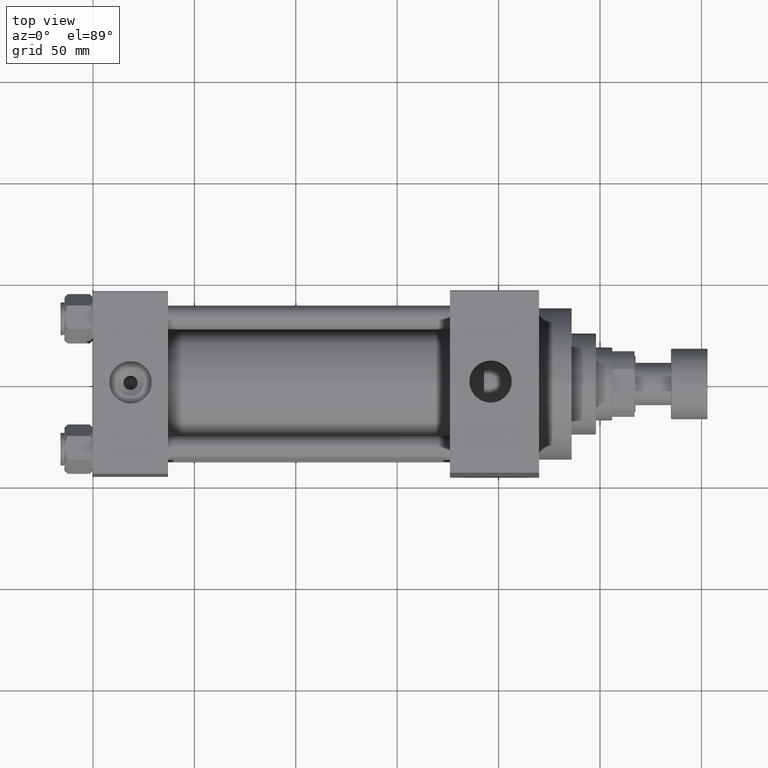
[diagram: clean part render]
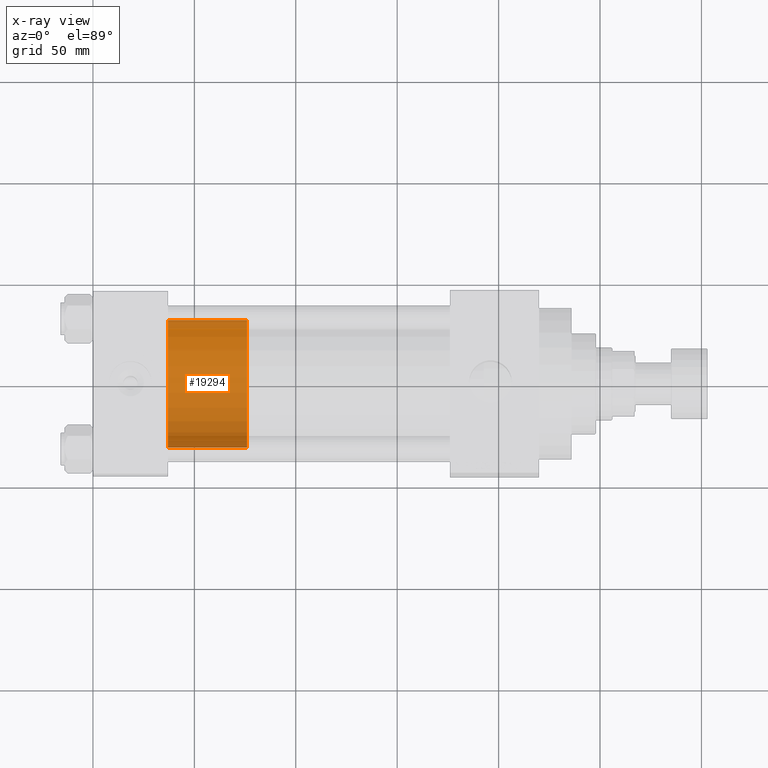
[diagram: x-ray — body ghosted, one internal face saturated and labeled with its STEP entity id]
A machine part, top view, then the same camera in x-ray: the body is ghosted and one INTERNAL B-rep face — a face not visible from any outside direction — is saturated and labeled: STEP entity #19294.
In plain terms, the highlighted cylindrical surface (partial cylindrical patch) has radius 31.5 mm, axis along (-1, 0, 0).
Its self-contained STEP definition (entity closure, byte-faithful):
#5964 = LINE ( 'NONE', #20497, #32354 ) ;
#7456 = CIRCLE ( 'NONE', #31464, 31.50000000000000000 ) ;
#8679 = EDGE_CURVE ( 'NONE', #38526, #28227, #35346, .T. ) ;
#8850 = AXIS2_PLACEMENT_3D ( 'NONE', #36774, #32196, #46978 ) ;
#10507 = VERTEX_POINT ( 'NONE', #42223 ) ;
#11520 = CIRCLE ( 'NONE', #38586, 31.50000000000000000 ) ;
#13238 = DIRECTION ( 'NONE',  ( -0.000000000000000000, -0.000000000000000000, -1.000000000000000000 ) ) ;
#13569 = ORIENTED_EDGE ( 'NONE', *, *, #23997, .F. ) ;
#16372 = CARTESIAN_POINT ( 'NONE',  ( 31.50000000000000000, 3.857637417314162689E-15, 39.00000000000000000 ) ) ;
#16408 = CARTESIAN_POINT ( 'NONE',  ( 0.000000000000000000, 0.000000000000000000, 39.00000000000000000 ) ) ;
#17911 = FACE_OUTER_BOUND ( 'NONE', #35190, .T. ) ;
#18545 = CARTESIAN_POINT ( 'NONE',  ( -31.50000000000000000, 0.000000000000000000, 0.000000000000000000 ) ) ;
#19294 = ADVANCED_FACE ( 'NONE', ( #17911 ), #47682, .T. ) ;
#19521 = ORIENTED_EDGE ( 'NONE', *, *, #8679, .T. ) ;
#20497 = CARTESIAN_POINT ( 'NONE',  ( -31.50000000000000000, 0.000000000000000000, 39.00000000000000000 ) ) ;
#23982 = DIRECTION ( 'NONE',  ( -0.000000000000000000, -0.000000000000000000, -1.000000000000000000 ) ) ;
#23997 = EDGE_CURVE ( 'NONE', #38526, #10507, #7456, .T. ) ;
#27364 = CARTESIAN_POINT ( 'NONE',  ( 31.50000000000000000, 3.857637417314162689E-15, 39.00000000000000000 ) ) ;
#27481 = CARTESIAN_POINT ( 'NONE',  ( 0.000000000000000000, 0.000000000000000000, 0.000000000000000000 ) ) ;
#28227 = VERTEX_POINT ( 'NONE', #44806 ) ;
#28653 = EDGE_CURVE ( 'NONE', #10507, #29741, #5964, .T. ) ;
#29090 = EDGE_CURVE ( 'NONE', #28227, #29741, #11520, .T. ) ;
#29741 = VERTEX_POINT ( 'NONE', #18545 ) ;
#31174 = DIRECTION ( 'NONE',  ( 1.000000000000000000, 0.000000000000000000, 0.000000000000000000 ) ) ;
#31248 = VECTOR ( 'NONE', #23982, 1000.000000000000000 ) ;
#31464 = AXIS2_PLACEMENT_3D ( 'NONE', #16408, #45714, #31174 ) ;
#31990 = DIRECTION ( 'NONE',  ( 0.000000000000000000, 0.000000000000000000, 1.000000000000000000 ) ) ;
#32196 = DIRECTION ( 'NONE',  ( -0.000000000000000000, -0.000000000000000000, -1.000000000000000000 ) ) ;
#32354 = VECTOR ( 'NONE', #13238, 1000.000000000000000 ) ;
#35190 = EDGE_LOOP ( 'NONE', ( #13569, #19521, #41309, #39234 ) ) ;
#35346 = LINE ( 'NONE', #27364, #31248 ) ;
#36774 = CARTESIAN_POINT ( 'NONE',  ( 0.000000000000000000, 0.000000000000000000, 39.00000000000000000 ) ) ;
#38526 = VERTEX_POINT ( 'NONE', #16372 ) ;
#38586 = AXIS2_PLACEMENT_3D ( 'NONE', #27481, #31990, #42258 ) ;
#39234 = ORIENTED_EDGE ( 'NONE', *, *, #28653, .F. ) ;
#41309 = ORIENTED_EDGE ( 'NONE', *, *, #29090, .T. ) ;
#42223 = CARTESIAN_POINT ( 'NONE',  ( -31.50000000000000000, 0.000000000000000000, 39.00000000000000000 ) ) ;
#42258 = DIRECTION ( 'NONE',  ( 1.000000000000000000, 0.000000000000000000, 0.000000000000000000 ) ) ;
#44806 = CARTESIAN_POINT ( 'NONE',  ( 31.50000000000000000, 3.857637417314162689E-15, 0.000000000000000000 ) ) ;
#45714 = DIRECTION ( 'NONE',  ( 0.000000000000000000, 0.000000000000000000, 1.000000000000000000 ) ) ;
#46978 = DIRECTION ( 'NONE',  ( -1.000000000000000000, 0.000000000000000000, 0.000000000000000000 ) ) ;
#47682 = CYLINDRICAL_SURFACE ( 'NONE', #8850, 31.50000000000000000 ) ;